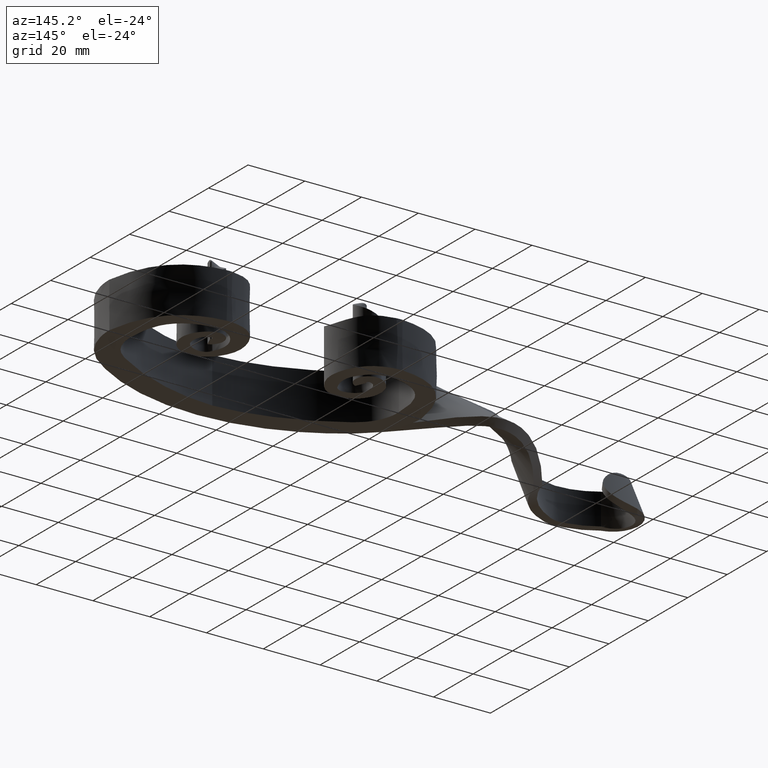
[diagram: clean part render]
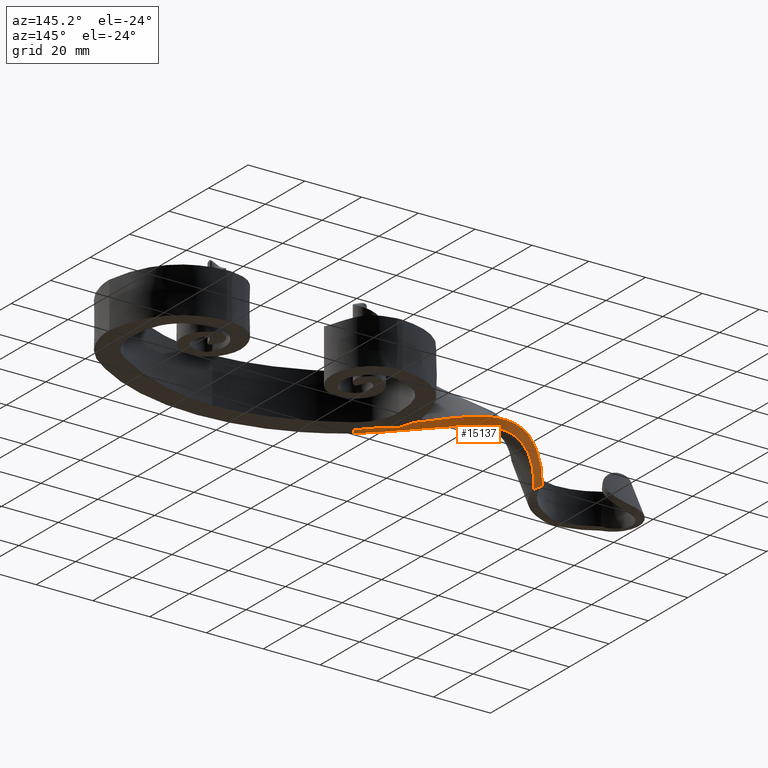
[diagram: same view with one face highlighted and labeled with its STEP entity id]
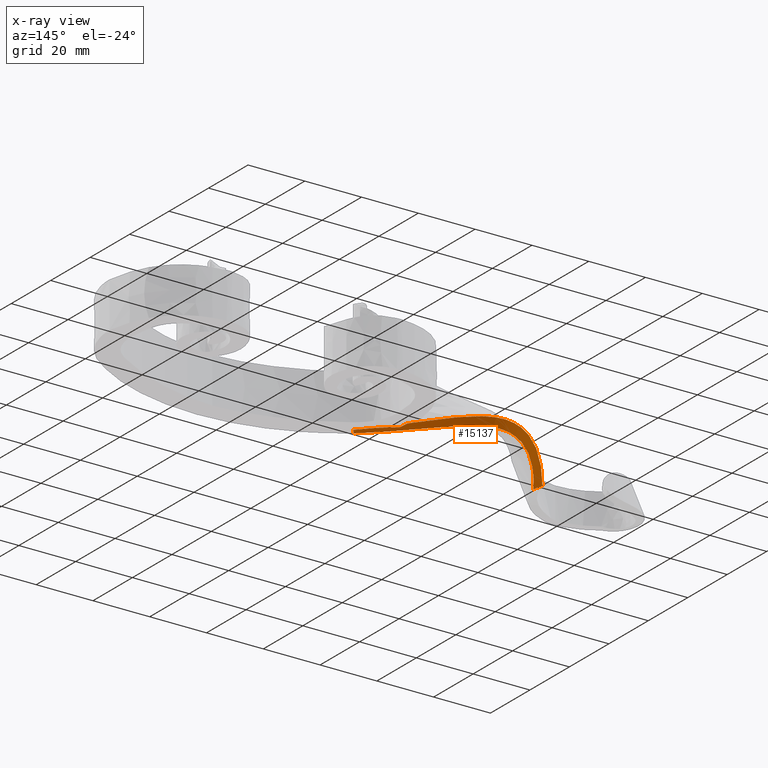
[diagram: x-ray of the same camera — body ghosted, the highlighted face saturated]
A machine part, auxiliary view. The second image highlights one B-rep face of the part: STEP entity #15137.
The next image is the same camera in x-ray: the body ghosted, the highlighted face saturated — about 0% of this face is hidden behind the body in this view.
In plain terms, the highlighted face is a freeform B-spline surface patch.
Its self-contained STEP definition (entity closure, byte-faithful):
#229 = CARTESIAN_POINT ( 'NONE',  ( -60.30284981061817717, 4.580316353366425730, -6.944135658084808149 ) ) ;
#288 = CARTESIAN_POINT ( 'NONE',  ( -43.20000000000004547, -12.59999999999998188, -8.000000000000001776 ) ) ;
#431 = CARTESIAN_POINT ( 'NONE',  ( -51.66292495566779763, -4.989781795069832881, -7.999999999999994671 ) ) ;
#780 = B_SPLINE_CURVE_WITH_KNOTS ( 'NONE', 3,
 ( #6655, #8011, #431, #12965, #8130, #5552, #6872, #15473, #15424, #9298 ),
 .UNSPECIFIED., .F., .F.,
 ( 4, 2, 2, 2, 4 ),
 ( 0.002786137763228973673, 0.006224714455727269405, 0.009663291148225566438, 0.01310186784072386000, 0.01654044453322215530 ),
 .UNSPECIFIED. ) ;
#873 = CARTESIAN_POINT ( 'NONE',  ( -56.34603692971393230, -3.569415605905404743, -8.759438543989984893 ) ) ;
#1584 = EDGE_CURVE ( 'NONE', #4243, #5330, #3822, .T. ) ;
#1606 = ORIENTED_EDGE ( 'NONE', *, *, #1842, .T. ) ;
#1646 = CARTESIAN_POINT ( 'NONE',  ( -56.34603692971393230, -3.569415605905404743, -8.759438543989984893 ) ) ;
#1698 = CARTESIAN_POINT ( 'NONE',  ( -47.34801487504121553, -8.805388968212424672, -8.068263666716946503 ) ) ;
#1842 = EDGE_CURVE ( 'NONE', #15928, #8587, #10154, .T. ) ;
#2201 = VECTOR ( 'NONE', #6186, 1000.000000000000227 ) ;
#2685 = ORIENTED_EDGE ( 'NONE', *, *, #10557, .F. ) ;
#2866 = CARTESIAN_POINT ( 'NONE',  ( -108.3891737287247423, -12.09960942566068454, -9.825317547305473909 ) ) ;
#3208 = LINE ( 'NONE', #14323, #8923 ) ;
#3390 = ORIENTED_EDGE ( 'NONE', *, *, #1584, .T. ) ;
#3412 = EDGE_LOOP ( 'NONE', ( #5120, #1606, #11234, #2685, #3390, #4303 ) ) ;
#3822 = B_SPLINE_CURVE_WITH_KNOTS ( 'NONE', 3,
 ( #12150, #5892, #873, #7153, #15922, #14611 ),
 .UNSPECIFIED., .F., .F.,
 ( 4, 1, 1, 4 ),
 ( 0.000000000000000000, 0.2476109074096188023, 0.5351375507135722742, 1.000000000000000000 ),
 .UNSPECIFIED. ) ;
#4132 = CARTESIAN_POINT ( 'NONE',  ( -54.37468783274965745, -1.232177667856706904, -7.840201177061356219 ) ) ;
#4180 = CARTESIAN_POINT ( 'NONE',  ( -54.51115490866757796, -0.8575813848620177371, -7.486440096859543480 ) ) ;
#4189 = CARTESIAN_POINT ( 'NONE',  ( -98.60792924082394961, 2.003499971297148186, -8.012799191667070886 ) ) ;
#4243 = VERTEX_POINT ( 'NONE', #7198 ) ;
#4303 = ORIENTED_EDGE ( 'NONE', *, *, #8796, .F. ) ;
#4828 = B_SPLINE_SURFACE_WITH_KNOTS ( 'NONE', 3, 3, ( 
 ( #288, #5406, #4132, #6662, #15430, #15478 ),
 ( #7913, #1698, #10410, #9139, #4189, #2866 ),
 ( #5505, #10573, #9082, #14222, #12970, #12862 ),
 ( #7966, #14167, #1646, #13023, #5354, #10462 ) ),
 .UNSPECIFIED., .F., .F., .F.,
 ( 4, 4 ),
 ( 4, 1, 1, 4 ),
 ( 0.000000000000000000, 1.000000000000000000 ),
 ( 0.000000000000000000, 0.2476109074096188023, 0.5351375507135722742, 1.000000000000000000 ),
 .UNSPECIFIED. ) ;
#5050 = B_SPLINE_CURVE_WITH_KNOTS ( 'NONE', 3,
 ( #14160, #4180, #229, #14109, #12914, #11493 ),
 .UNSPECIFIED., .F., .F.,
 ( 4, 1, 1, 4 ),
 ( 0.2326226089176657019, 0.2476109074096188023, 0.5351375507135722742, 1.000000000000000000 ),
 .UNSPECIFIED. ) ;
#5120 = ORIENTED_EDGE ( 'NONE', *, *, #8660, .F. ) ;
#5330 = VERTEX_POINT ( 'NONE', #14612 ) ;
#5354 = CARTESIAN_POINT ( 'NONE',  ( -97.55439934951195369, 1.138163433742840569, -9.514872658898040569 ) ) ;
#5406 = CARTESIAN_POINT ( 'NONE',  ( -46.73785010216804636, -7.966515708669911433, -7.952089162686257318 ) ) ;
#5505 = CARTESIAN_POINT ( 'NONE',  ( -44.40000000000003411, -14.19999999999997975, -8.000000000000001776 ) ) ;
#5552 = CARTESIAN_POINT ( 'NONE',  ( -47.28956902376972238, -8.685305254418512533, -7.999999999999994671 ) ) ;
#5892 = CARTESIAN_POINT ( 'NONE',  ( -48.56834442078753966, -10.48313548729744582, -8.300612674778323097 ) ) ;
#6186 = DIRECTION ( 'NONE',  ( 0.5999999999999989786, 0.8000000000000007105, -0.000000000000000000 ) ) ;
#6373 = CARTESIAN_POINT ( 'NONE',  ( -43.44744243694510288, -12.92992324926026271, -7.999999999999998224 ) ) ;
#6655 = CARTESIAN_POINT ( 'NONE',  ( -53.47191083638099229, -3.581618127449665234, -8.000000000000000000 ) ) ;
#6662 = CARTESIAN_POINT ( 'NONE',  ( -79.85871969642259671, 23.75461982473097677, -3.988187294379375913 ) ) ;
#6872 = CARTESIAN_POINT ( 'NONE',  ( -46.46733463210562576, -9.480164917284817250, -7.999999999999994671 ) ) ;
#7153 = CARTESIAN_POINT ( 'NONE',  ( -79.26689474528411949, 22.23739565170323118, -7.277835872573934495 ) ) ;
#7198 = CARTESIAN_POINT ( 'NONE',  ( -45.00000000000004263, -14.99999999999997513, -8.000000000000001776 ) ) ;
#7913 = CARTESIAN_POINT ( 'NONE',  ( -43.80000000000003268, -13.39999999999998082, -8.000000000000001776 ) ) ;
#7966 = CARTESIAN_POINT ( 'NONE',  ( -45.00000000000002842, -14.99999999999998224, -8.000000000000001776 ) ) ;
#8011 = CARTESIAN_POINT ( 'NONE',  ( -52.56832832449285320, -4.286850655381781117, -8.000000000000005329 ) ) ;
#8130 = CARTESIAN_POINT ( 'NONE',  ( -48.99357567092175003, -7.158210454621803720, -7.999999999999994671 ) ) ;
#8587 = VERTEX_POINT ( 'NONE', #11291 ) ;
#8660 = EDGE_CURVE ( 'NONE', #15928, #10676, #5050, .T. ) ;
#8695 = LINE ( 'NONE', #11339, #2201 ) ;
#8796 = EDGE_CURVE ( 'NONE', #10676, #5330, #3208, .T. ) ;
#8923 = VECTOR ( 'NONE', #14502, 1000.000000000000114 ) ;
#9082 = CARTESIAN_POINT ( 'NONE',  ( -55.68892056405918822, -2.790336293222505315, -8.453026088347112221 ) ) ;
#9139 = CARTESIAN_POINT ( 'NONE',  ( -79.66144471270975203, 23.24887843372172824, -5.084736820444229366 ) ) ;
#9197 = VERTEX_POINT ( 'NONE', #6373 ) ;
#9298 = CARTESIAN_POINT ( 'NONE',  ( -43.44744243694510288, -12.92992324926026271, -7.999999999999998224 ) ) ;
#10154 = B_SPLINE_CURVE_WITH_KNOTS ( 'NONE', 3,
 ( #14079, #13875, #10316, #15236 ),
 .UNSPECIFIED., .F., .F.,
 ( 4, 4 ),
 ( 0.000000000000000000, 0.002618852259501826783 ),
 .UNSPECIFIED. ) ;
#10316 = CARTESIAN_POINT ( 'NONE',  ( -53.76843951676159605, -2.768792168404327736, -7.871207939460710179 ) ) ;
#10410 = CARTESIAN_POINT ( 'NONE',  ( -55.03180419840441573, -2.011256980539606332, -8.146613632704235997 ) ) ;
#10462 = CARTESIAN_POINT ( 'NONE',  ( -106.8419929930820587, -12.87821829489875469, -10.82531754730547924 ) ) ;
#10557 = EDGE_CURVE ( 'NONE', #4243, #9197, #8695, .T. ) ;
#10573 = CARTESIAN_POINT ( 'NONE',  ( -47.95817964791438470, -9.644262227754934358, -8.184438170747633023 ) ) ;
#10676 = VERTEX_POINT ( 'NONE', #13900 ) ;
#11234 = ORIENTED_EDGE ( 'NONE', *, *, #13980, .T. ) ;
#11291 = CARTESIAN_POINT ( 'NONE',  ( -53.47191083638099229, -3.581618127449665234, -8.000000000000000000 ) ) ;
#11339 = CARTESIAN_POINT ( 'NONE',  ( -43.20000000000003126, -12.59999999999998010, -8.000000000000000000 ) ) ;
#11493 = CARTESIAN_POINT ( 'NONE',  ( -109.1627640965460984, -11.71030499104166367, -9.325317547305472132 ) ) ;
#12150 = CARTESIAN_POINT ( 'NONE',  ( -45.00000000000004263, -14.99999999999997513, -8.000000000000001776 ) ) ;
#12862 = CARTESIAN_POINT ( 'NONE',  ( -107.6155833609033863, -12.48891386027971961, -10.32531754730547746 ) ) ;
#12914 = CARTESIAN_POINT ( 'NONE',  ( -99.13469418647991915, 2.436168240074292335, -7.261762458051583380 ) ) ;
#12965 = CARTESIAN_POINT ( 'NONE',  ( -49.87539886867990191, -6.425068580381463335, -7.999999999999994671 ) ) ;
#12970 = CARTESIAN_POINT ( 'NONE',  ( -98.08116429516792323, 1.570831702519995376, -8.763835925282556616 ) ) ;
#13023 = CARTESIAN_POINT ( 'NONE',  ( -79.26689474528411949, 22.23739565170323118, -7.277835872573934495 ) ) ;
#13205 = CARTESIAN_POINT ( 'NONE',  ( -54.22862303936197748, -1.122450745119980775, -7.511871344169120057 ) ) ;
#13841 = FACE_OUTER_BOUND ( 'NONE', #3412, .T. ) ;
#13875 = CARTESIAN_POINT ( 'NONE',  ( -54.02001385705083436, -1.948691130058283871, -7.709377744790720577 ) ) ;
#13900 = CARTESIAN_POINT ( 'NONE',  ( -109.1627640965460984, -11.71030499104166367, -9.325317547305472132 ) ) ;
#13980 = EDGE_CURVE ( 'NONE', #8587, #9197, #780, .T. ) ;
#14079 = CARTESIAN_POINT ( 'NONE',  ( -54.22862303936197748, -1.122450745119980775, -7.511871344169120057 ) ) ;
#14109 = CARTESIAN_POINT ( 'NONE',  ( -79.85871969642259671, 23.75461982473096612, -3.988187294379372361 ) ) ;
#14160 = CARTESIAN_POINT ( 'NONE',  ( -54.22862303936197748, -1.122450745119980775, -7.511871344169120057 ) ) ;
#14167 = CARTESIAN_POINT ( 'NONE',  ( -48.56834442078753966, -10.48313548729744582, -8.300612674778323097 ) ) ;
#14222 = CARTESIAN_POINT ( 'NONE',  ( -79.46416972899693576, 22.74313704271247616, -6.181286346509080154 ) ) ;
#14323 = CARTESIAN_POINT ( 'NONE',  ( -109.1627640965460699, -11.71030499104164946, -9.325317547305472132 ) ) ;
#14502 = DIRECTION ( 'NONE',  ( 0.7735903678213370549, -0.3893044346190346894, -0.5000000000000019984 ) ) ;
#14611 = CARTESIAN_POINT ( 'NONE',  ( -106.8419929930820871, -12.87821829489876890, -10.82531754730547924 ) ) ;
#14612 = CARTESIAN_POINT ( 'NONE',  ( -106.8419929930820871, -12.87821829489876890, -10.82531754730547924 ) ) ;
#15137 = ADVANCED_FACE ( 'NONE', ( #13841 ), #4828, .T. ) ;
#15236 = CARTESIAN_POINT ( 'NONE',  ( -53.47191083638099229, -3.581618127449665234, -8.000000000000000000 ) ) ;
#15424 = CARTESIAN_POINT ( 'NONE',  ( -44.15231994518182290, -12.02609565043216300, -8.000000000000000000 ) ) ;
#15430 = CARTESIAN_POINT ( 'NONE',  ( -99.13469418647991915, 2.436168240074302993, -7.261762458051586044 ) ) ;
#15473 = CARTESIAN_POINT ( 'NONE',  ( -44.89883103973105705, -11.14978774921605797, -7.999999999999994671 ) ) ;
#15478 = CARTESIAN_POINT ( 'NONE',  ( -109.1627640965460699, -11.71030499104164946, -9.325317547305472132 ) ) ;
#15922 = CARTESIAN_POINT ( 'NONE',  ( -97.55439934951195369, 1.138163433742840569, -9.514872658898040569 ) ) ;
#15928 = VERTEX_POINT ( 'NONE', #13205 ) ;